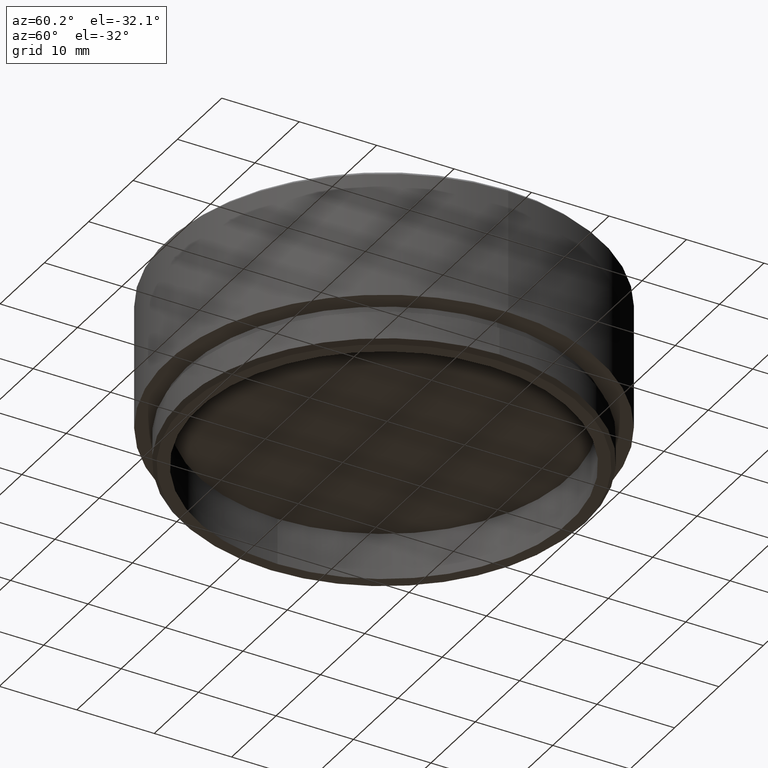
[diagram: clean part render]
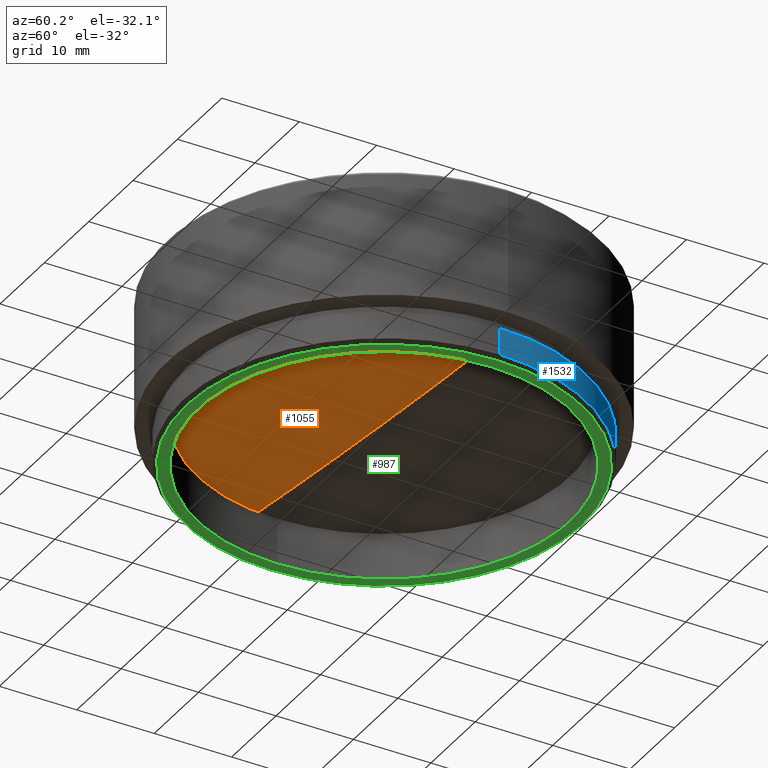
[diagram: same view with three faces highlighted in distinct colors, each labeled with its STEP entity id]
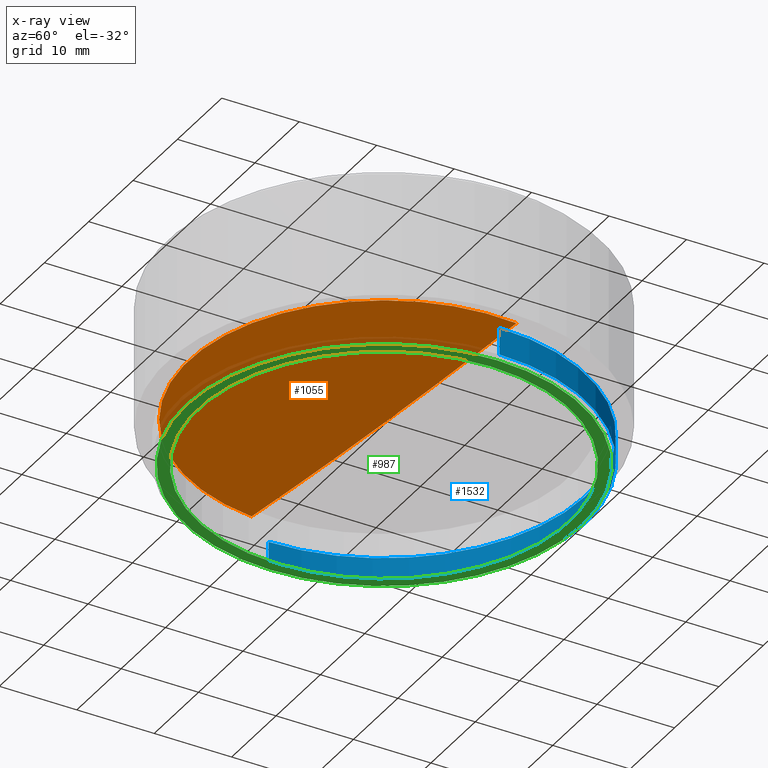
[diagram: x-ray of the same camera — body ghosted, the three highlighted faces saturated]
A machine part, auxiliary view with three faces highlighted in distinct colors.
The next image is the same camera in x-ray (body ghosted, the three faces saturated) — at least one of them is partly hidden behind the body in this view.
Their STEP definitions:

[orange] entity #1055 — the highlighted toroidal blend (fillet) surface has major radius 0.0866 mm and minor (blend) radius 760 mm.
#57 = CARTESIAN_POINT ( 'NONE',  ( 0.000000000000000000, 0.000000000000000000, -6.579002310387219943 ) ) ;
#128 = DIRECTION ( 'NONE',  ( -1.000000000000000000, 0.000000000000000000, 0.000000000000000000 ) ) ;
#130 = VERTEX_POINT ( 'NONE', #730 ) ;
#153 = VERTEX_POINT ( 'NONE', #345 ) ;
#179 = CARTESIAN_POINT ( 'NONE',  ( 0.08655913692159029893, -1.060043699679830005E-17, 752.9999950707340304 ) ) ;
#211 = CARTESIAN_POINT ( 'NONE',  ( -25.20665610927519751, 3.098763970988725090E-15, -6.579002310387219943 ) ) ;
#259 = CIRCLE ( 'NONE', #1084, 760.0000000000000000 ) ;
#308 = DIRECTION ( 'NONE',  ( 0.000000000000000000, -1.000000000000000000, 0.000000000000000000 ) ) ;
#345 = CARTESIAN_POINT ( 'NONE',  ( 1.463130831769187729E-13, 0.000000000000000000, -7.000000000000000000 ) ) ;
#382 = AXIS2_PLACEMENT_3D ( 'NONE', #1351, #543, #128 ) ;
#408 = EDGE_CURVE ( 'NONE', #153, #130, #259, .T. ) ;
#412 = EDGE_CURVE ( 'NONE', #153, #839, #1749, .T. ) ;
#543 = DIRECTION ( 'NONE',  ( 0.000000000000000000, 0.000000000000000000, 1.000000000000000000 ) ) ;
#652 = ORIENTED_EDGE ( 'NONE', *, *, #412, .F. ) ;
#683 = AXIS2_PLACEMENT_3D ( 'NONE', #179, #725, #1267 ) ;
#713 = CARTESIAN_POINT ( 'NONE',  ( -0.08655913692159029893, 0.000000000000000000, 752.9999950707340304 ) ) ;
#725 = DIRECTION ( 'NONE',  ( 1.224646799147351975E-16, 1.000000000000000000, 0.000000000000000000 ) ) ;
#730 = CARTESIAN_POINT ( 'NONE',  ( 25.20665610927519751, 0.000000000000000000, -6.579002310387219943 ) ) ;
#824 = EDGE_LOOP ( 'NONE', ( #652, #1729, #1245 ) ) ;
#839 = VERTEX_POINT ( 'NONE', #211 ) ;
#858 = DIRECTION ( 'NONE',  ( 0.000000000000000000, 0.000000000000000000, -1.000000000000000000 ) ) ;
#887 = DIRECTION ( 'NONE',  ( 0.000000000000000000, 0.000000000000000000, -1.000000000000000000 ) ) ;
#1055 = ADVANCED_FACE ( 'NONE', ( #1744 ), #1164, .T. ) ;
#1084 = AXIS2_PLACEMENT_3D ( 'NONE', #713, #308, #858 ) ;
#1164 = TOROIDAL_SURFACE ( 'NONE', #382, -0.08655913692159029893, 760.0000000000000000 ) ;
#1245 = ORIENTED_EDGE ( 'NONE', *, *, #1675, .T. ) ;
#1256 = AXIS2_PLACEMENT_3D ( 'NONE', #57, #887, #1425 ) ;
#1267 = DIRECTION ( 'NONE',  ( -1.000000000000000000, 1.224646799147351975E-16, 0.000000000000000000 ) ) ;
#1351 = CARTESIAN_POINT ( 'NONE',  ( 0.000000000000000000, 0.000000000000000000, 752.9999950707340304 ) ) ;
#1425 = DIRECTION ( 'NONE',  ( 1.000000000000000000, 0.000000000000000000, 0.000000000000000000 ) ) ;
#1530 = CIRCLE ( 'NONE', #1256, 25.20665610927519751 ) ;
#1675 = EDGE_CURVE ( 'NONE', #130, #839, #1530, .T. ) ;
#1729 = ORIENTED_EDGE ( 'NONE', *, *, #408, .T. ) ;
#1744 = FACE_OUTER_BOUND ( 'NONE', #824, .T. ) ;
#1749 = CIRCLE ( 'NONE', #683, 760.0000000000000000 ) ;

[blue] entity #1532 — the highlighted cylindrical surface (partial cylindrical patch) has radius 26 mm, axis along (-0, -0, -1).
#46 = DIRECTION ( 'NONE',  ( -0.000000000000000000, -0.000000000000000000, -1.000000000000000000 ) ) ;
#118 = AXIS2_PLACEMENT_3D ( 'NONE', #1137, #301, #571 ) ;
#172 = ORIENTED_EDGE ( 'NONE', *, *, #605, .T. ) ;
#206 = EDGE_LOOP ( 'NONE', ( #1740, #172, #681, #1271 ) ) ;
#227 = CIRCLE ( 'NONE', #856, 26.00000000000000355 ) ;
#251 = AXIS2_PLACEMENT_3D ( 'NONE', #672, #515, #1074 ) ;
#267 = FACE_OUTER_BOUND ( 'NONE', #206, .T. ) ;
#301 = DIRECTION ( 'NONE',  ( 0.000000000000000000, 0.000000000000000000, -1.000000000000000000 ) ) ;
#333 = DIRECTION ( 'NONE',  ( 1.000000000000000000, 0.000000000000000000, 0.000000000000000000 ) ) ;
#427 = VECTOR ( 'NONE', #46, 1000.000000000000000 ) ;
#433 = VECTOR ( 'NONE', #436, 1000.000000000000000 ) ;
#436 = DIRECTION ( 'NONE',  ( -0.000000000000000000, -0.000000000000000000, -1.000000000000000000 ) ) ;
#448 = CARTESIAN_POINT ( 'NONE',  ( -26.00000000000000355, 0.000000000000000000, 0.5000000000000247580 ) ) ;
#477 = DIRECTION ( 'NONE',  ( 0.000000000000000000, 0.000000000000000000, 1.000000000000000000 ) ) ;
#480 = EDGE_CURVE ( 'NONE', #1364, #1300, #227, .T. ) ;
#515 = DIRECTION ( 'NONE',  ( -0.000000000000000000, -0.000000000000000000, -1.000000000000000000 ) ) ;
#566 = CARTESIAN_POINT ( 'NONE',  ( 26.00000000000000355, 3.184081677783118585E-15, 4.000000000000000000 ) ) ;
#571 = DIRECTION ( 'NONE',  ( -1.000000000000000000, 0.000000000000000000, 0.000000000000000000 ) ) ;
#594 = EDGE_CURVE ( 'NONE', #1199, #1216, #897, .T. ) ;
#605 = EDGE_CURVE ( 'NONE', #1216, #1364, #1506, .T. ) ;
#635 = CARTESIAN_POINT ( 'NONE',  ( 26.00000000000000355, 3.184081677783118585E-15, 0.5000000000000247580 ) ) ;
#672 = CARTESIAN_POINT ( 'NONE',  ( 0.000000000000000000, 0.000000000000000000, 5.000000000000000000 ) ) ;
#681 = ORIENTED_EDGE ( 'NONE', *, *, #480, .T. ) ;
#856 = AXIS2_PLACEMENT_3D ( 'NONE', #1407, #477, #333 ) ;
#897 = CIRCLE ( 'NONE', #118, 26.00000000000000355 ) ;
#970 = CARTESIAN_POINT ( 'NONE',  ( -26.00000000000000355, 0.000000000000000000, 4.000000000000000000 ) ) ;
#1074 = DIRECTION ( 'NONE',  ( -1.000000000000000000, 0.000000000000000000, 0.000000000000000000 ) ) ;
#1113 = CARTESIAN_POINT ( 'NONE',  ( 26.00000000000000355, 3.184081677783118585E-15, 5.000000000000000000 ) ) ;
#1128 = CARTESIAN_POINT ( 'NONE',  ( -26.00000000000000355, 0.000000000000000000, 5.000000000000000000 ) ) ;
#1137 = CARTESIAN_POINT ( 'NONE',  ( 0.000000000000000000, 0.000000000000000000, 4.000000000000000000 ) ) ;
#1199 = VERTEX_POINT ( 'NONE', #970 ) ;
#1216 = VERTEX_POINT ( 'NONE', #566 ) ;
#1271 = ORIENTED_EDGE ( 'NONE', *, *, #1283, .F. ) ;
#1283 = EDGE_CURVE ( 'NONE', #1199, #1300, #1367, .T. ) ;
#1300 = VERTEX_POINT ( 'NONE', #448 ) ;
#1364 = VERTEX_POINT ( 'NONE', #635 ) ;
#1367 = LINE ( 'NONE', #1128, #427 ) ;
#1407 = CARTESIAN_POINT ( 'NONE',  ( 0.000000000000000000, 0.000000000000000000, 0.5000000000000247580 ) ) ;
#1506 = LINE ( 'NONE', #1113, #433 ) ;
#1532 = ADVANCED_FACE ( 'NONE', ( #267 ), #1731, .T. ) ;
#1731 = CYLINDRICAL_SURFACE ( 'NONE', #251, 26.00000000000000355 ) ;
#1740 = ORIENTED_EDGE ( 'NONE', *, *, #594, .T. ) ;

[green] entity #987 — the highlighted planar face has unit normal (0, 0, 1).
#73 = CARTESIAN_POINT ( 'NONE',  ( 0.000000000000000000, 0.000000000000000000, 0.000000000000000000 ) ) ;
#94 = DIRECTION ( 'NONE',  ( 1.000000000000000000, 0.000000000000000000, 0.000000000000000000 ) ) ;
#166 = AXIS2_PLACEMENT_3D ( 'NONE', #1422, #1153, #467 ) ;
#264 = FACE_BOUND ( 'NONE', #1735, .T. ) ;
#331 = DIRECTION ( 'NONE',  ( 0.000000000000000000, 0.000000000000000000, 1.000000000000000000 ) ) ;
#349 = CIRCLE ( 'NONE', #811, 24.00000000000000355 ) ;
#380 = CARTESIAN_POINT ( 'NONE',  ( -24.00000000000000355, 0.000000000000000000, 0.000000000000000000 ) ) ;
#467 = DIRECTION ( 'NONE',  ( 1.000000000000000000, 0.000000000000000000, 0.000000000000000000 ) ) ;
#473 = CARTESIAN_POINT ( 'NONE',  ( 0.000000000000000000, 0.000000000000000000, 0.000000000000000000 ) ) ;
#479 = CARTESIAN_POINT ( 'NONE',  ( 24.00000000000000355, 2.939152317953648289E-15, 0.000000000000000000 ) ) ;
#508 = AXIS2_PLACEMENT_3D ( 'NONE', #1163, #1178, #1696 ) ;
#514 = EDGE_LOOP ( 'NONE', ( #945, #1073 ) ) ;
#523 = ORIENTED_EDGE ( 'NONE', *, *, #529, .T. ) ;
#529 = EDGE_CURVE ( 'NONE', #1746, #1494, #1668, .T. ) ;
#580 = AXIS2_PLACEMENT_3D ( 'NONE', #473, #618, #1707 ) ;
#618 = DIRECTION ( 'NONE',  ( -0.000000000000000000, -0.000000000000000000, -1.000000000000000000 ) ) ;
#731 = VERTEX_POINT ( 'NONE', #1603 ) ;
#758 = CIRCLE ( 'NONE', #580, 25.49999999999998934 ) ;
#803 = VERTEX_POINT ( 'NONE', #1034 ) ;
#811 = AXIS2_PLACEMENT_3D ( 'NONE', #73, #331, #94 ) ;
#859 = EDGE_CURVE ( 'NONE', #731, #803, #758, .T. ) ;
#875 = EDGE_CURVE ( 'NONE', #1494, #1746, #349, .T. ) ;
#945 = ORIENTED_EDGE ( 'NONE', *, *, #859, .T. ) ;
#949 = PLANE ( 'NONE',  #997 ) ;
#987 = ADVANCED_FACE ( 'NONE', ( #1728, #264 ), #949, .F. ) ;
#997 = AXIS2_PLACEMENT_3D ( 'NONE', #1605, #1468, #1204 ) ;
#1034 = CARTESIAN_POINT ( 'NONE',  ( -25.49999999999998934, 3.153465507804433615E-15, 0.000000000000000000 ) ) ;
#1073 = ORIENTED_EDGE ( 'NONE', *, *, #1718, .T. ) ;
#1153 = DIRECTION ( 'NONE',  ( 0.000000000000000000, 0.000000000000000000, 1.000000000000000000 ) ) ;
#1163 = CARTESIAN_POINT ( 'NONE',  ( 0.000000000000000000, 0.000000000000000000, 0.000000000000000000 ) ) ;
#1178 = DIRECTION ( 'NONE',  ( -0.000000000000000000, -0.000000000000000000, -1.000000000000000000 ) ) ;
#1204 = DIRECTION ( 'NONE',  ( 1.000000000000000000, 0.000000000000000000, -0.000000000000000000 ) ) ;
#1312 = CIRCLE ( 'NONE', #508, 25.49999999999998934 ) ;
#1422 = CARTESIAN_POINT ( 'NONE',  ( 0.000000000000000000, 0.000000000000000000, 0.000000000000000000 ) ) ;
#1468 = DIRECTION ( 'NONE',  ( 0.000000000000000000, 0.000000000000000000, 1.000000000000000000 ) ) ;
#1494 = VERTEX_POINT ( 'NONE', #380 ) ;
#1601 = ORIENTED_EDGE ( 'NONE', *, *, #875, .T. ) ;
#1603 = CARTESIAN_POINT ( 'NONE',  ( 25.49999999999998934, 0.000000000000000000, 0.000000000000000000 ) ) ;
#1605 = CARTESIAN_POINT ( 'NONE',  ( 0.000000000000000000, 0.000000000000000000, 0.000000000000000000 ) ) ;
#1668 = CIRCLE ( 'NONE', #166, 24.00000000000000355 ) ;
#1696 = DIRECTION ( 'NONE',  ( 1.000000000000000000, 0.000000000000000000, 0.000000000000000000 ) ) ;
#1707 = DIRECTION ( 'NONE',  ( 1.000000000000000000, 0.000000000000000000, 0.000000000000000000 ) ) ;
#1718 = EDGE_CURVE ( 'NONE', #803, #731, #1312, .T. ) ;
#1728 = FACE_OUTER_BOUND ( 'NONE', #514, .T. ) ;
#1735 = EDGE_LOOP ( 'NONE', ( #1601, #523 ) ) ;
#1746 = VERTEX_POINT ( 'NONE', #479 ) ;